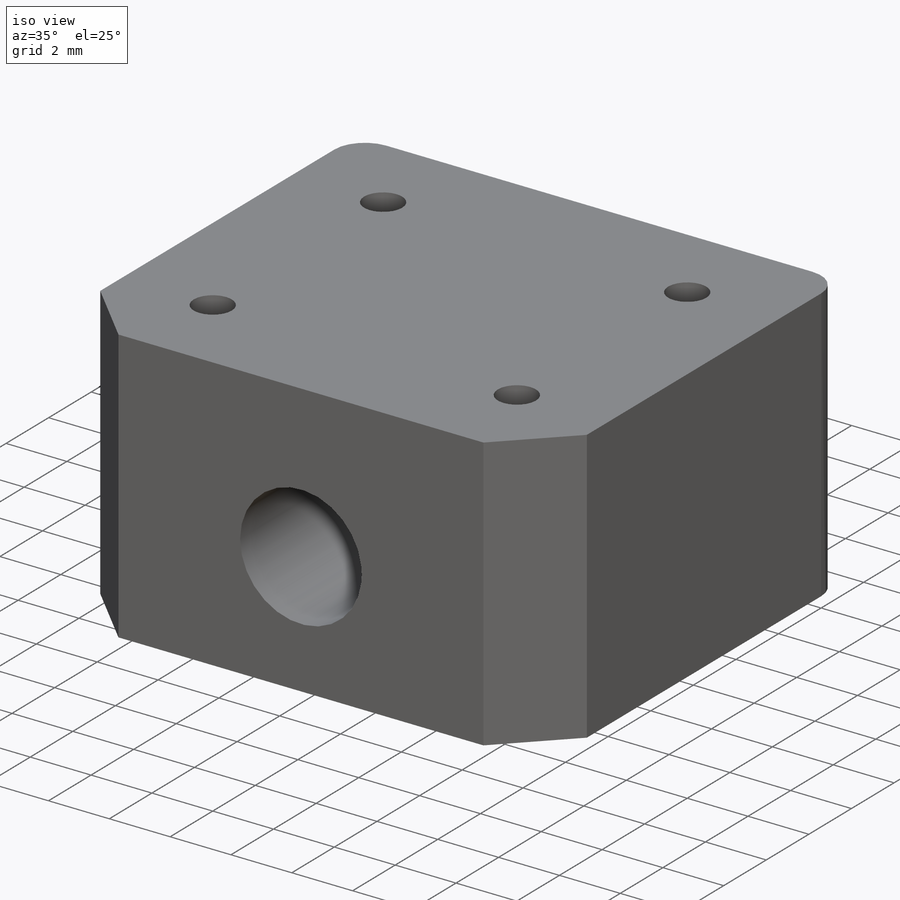
[diagram: iso view]
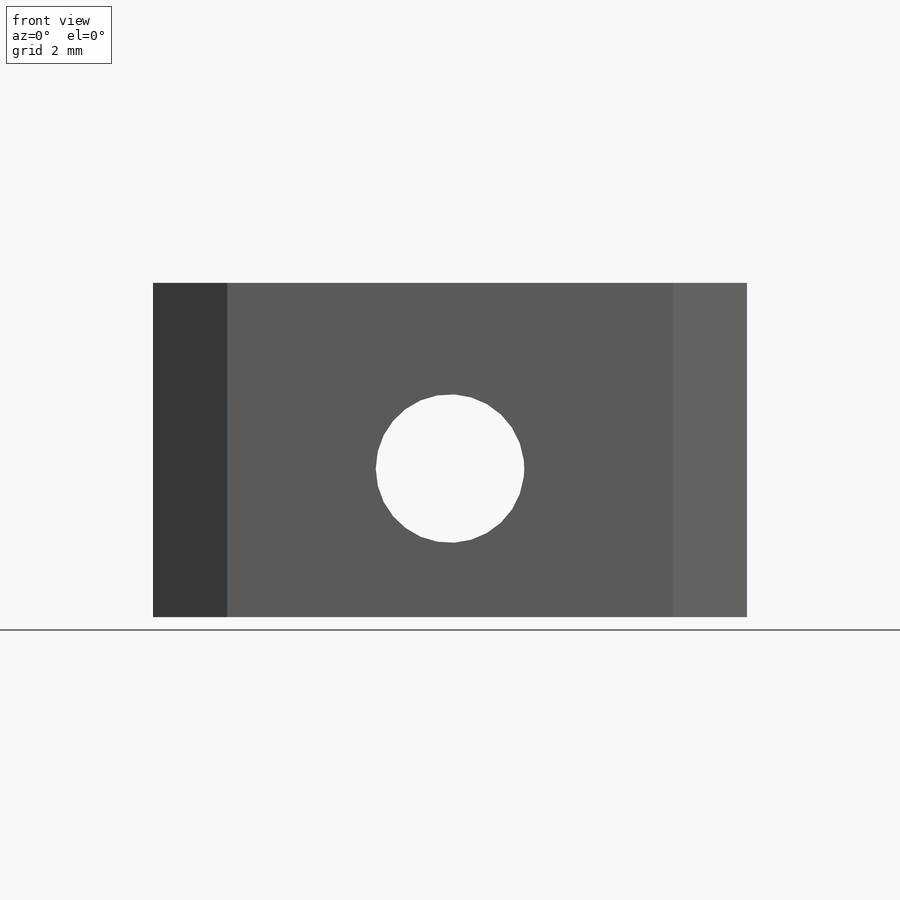
[diagram: front view]
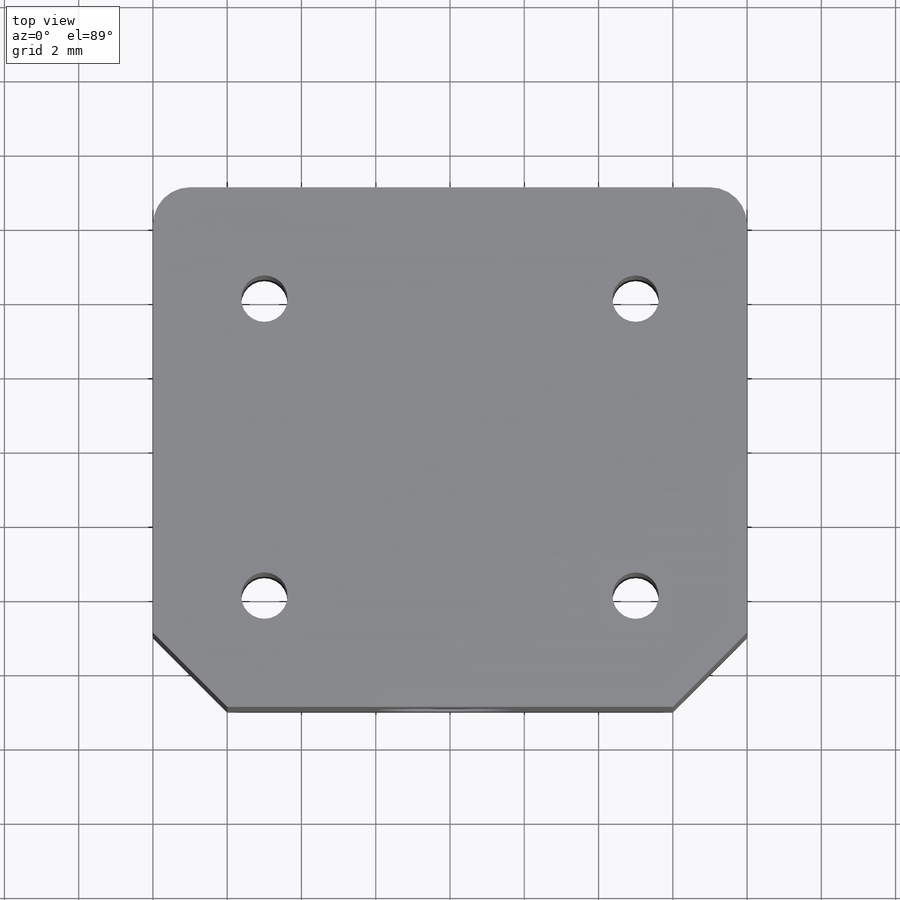
[diagram: top view]
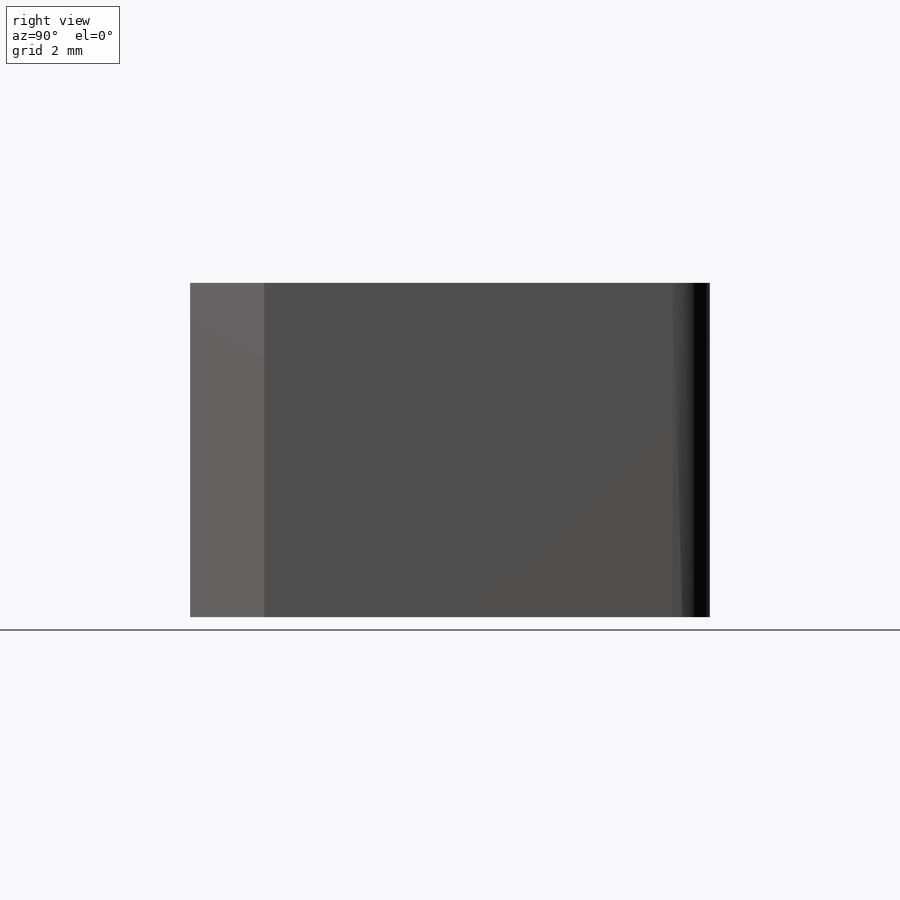
[diagram: right view]
SOLIDWORKS PART (.sldprt)
format: sldprt  version: not decoded by parser v0  size: 216,064 bytes
history: native  units: mm
features: sketch x4, plane x3, material x1, extrude x1, hole x1, mirror x1, chamfer x1, fillet x1 (+9 scaffold rows collapsed)
feature tree (22):
  scaffold x9  (default folders/planes/origin — collapsed)
  material  "ABS"
  plane  "Plan de face"
  plane  "Plan de dessus"
  plane  "Plan de droite"
  sketch  "Esquisse1"  dims[c1.D3=4.0mm c1.D4=4.0mm c1.D1=16.0mm c1.D2=9.0mm c2.D4=4.5mm c2.D5=8.0mm c3.D4=4.0mm]
  extrude  "Boss.-Extru.1"  Depth=7mm
  sketch  "Esquisse2"  dims[D1=3.0mm D2=3.0mm D3=10.0mm]
  hole  "Trou taraudé M1.61"  Diameter=1.25mm Depth=9mm
  sketch  "Esquisse3D1"  dims[D1=1.5mm D2=1.5mm]
  sketch  "Esquisse3"  dims[hole-wizard template sketch: 60 standard entries collapsed; hole parameters kept: c18.Profondeur du trou pour taraudage jusqu'au prochain=9.0mm]
  mirror  "Symétrie1"
  chamfer  "Chanfrein1"  Distance=2mm Angle=45deg
  fillet  "Congé1"  Radius=1mm
decode coverage: 8 of 9 modeling features carry decoded parameters
note: ~ marks probable driven/reference dimensions
note: suppression state not decoded; provenance and decode notes live in map.json
